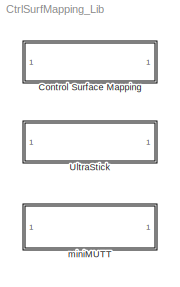
MODEL CtrlSurfMapping_Lib
KIND library
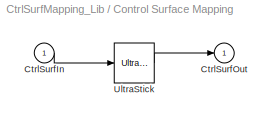
BLOCK [SubSystem] Control Surface Mapping
  BlockChoice = UltraStick
  FunctionWithSeparateData = off
  MaskHideContents = off
  MemberBlocks = UltraStick,miniMUTT
  MinAlgLoopOccurrences = off
  Opaque = off
  Ports = [1, 1]
  PropExecContextOutsideSubsystem = off
  RTWSystemCode = Auto
  RequestExecContextInheritance = off
  SID = 1
  TemplateBlock = self
BLOCK [Inport] Control Surface Mapping/CtrlSurfIn
  IconDisplay = Port number
  SID = 8
BLOCK [Outport] Control Surface Mapping/CtrlSurfOut
  IconDisplay = Port number
  SID = 9
BLOCK [Reference] Control Surface Mapping/UltraStick  REF=CtrlSurfMapping_Lib/UltraStick
  Ports = [1, 1]
  SID = 10
  SourceBlock = CtrlSurfMapping_Lib/UltraStick
  SourceType = SubSystem
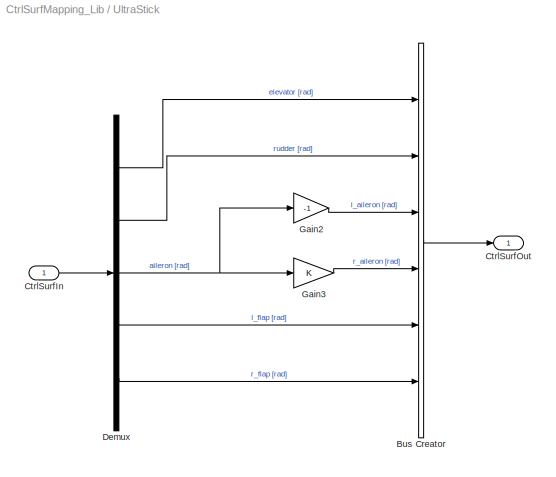
BLOCK [SubSystem] UltraStick
  FunctionWithSeparateData = off
  MaskHideContents = off
  MinAlgLoopOccurrences = off
  Opaque = off
  Ports = [1, 1]
  PropExecContextOutsideSubsystem = off
  RTWSystemCode = Auto
  RequestExecContextInheritance = off
  SID = 2
BLOCK [BusCreator] UltraStick/Bus Creator
  DisplayOption = bar
  Inputs = 6
  Ports = [6, 1]
  SID = 27
BLOCK [Inport] UltraStick/CtrlSurfIn
  IconDisplay = Port number
  SID = 3
BLOCK [Outport] UltraStick/CtrlSurfOut
  IconDisplay = Port number
  SID = 4
BLOCK [Demux] UltraStick/Demux
  DisplayOption = bar
  Outputs = 5
  Ports = [1, 5]
  SID = 13
BLOCK [Gain] UltraStick/Gain2
  Gain = -1
  OutDataTypeStr = Inherit: Inherit via internal rule
  ParamDataTypeStr = Inherit: Inherit via internal rule
  SID = 17
  SaturateOnIntegerOverflow = off
BLOCK [Gain] UltraStick/Gain3
  OutDataTypeStr = Inherit: Inherit via internal rule
  ParamDataTypeStr = Inherit: Inherit via internal rule
  SID = 18
  SaturateOnIntegerOverflow = off
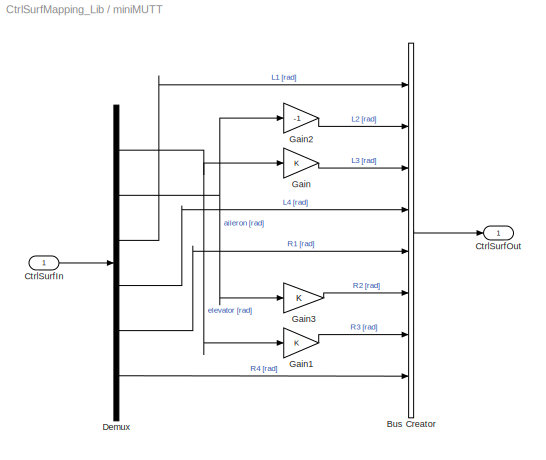
BLOCK [SubSystem] miniMUTT
  FunctionWithSeparateData = off
  MaskHideContents = off
  MinAlgLoopOccurrences = off
  Opaque = off
  Ports = [1, 1]
  PropExecContextOutsideSubsystem = off
  RTWSystemCode = Auto
  RequestExecContextInheritance = off
  SID = 5
BLOCK [BusCreator] miniMUTT/Bus Creator
  DisplayOption = bar
  Inputs = 8
  Ports = [8, 1]
  SID = 28
BLOCK [Inport] miniMUTT/CtrlSurfIn
  IconDisplay = Port number
  SID = 19
BLOCK [Outport] miniMUTT/CtrlSurfOut
  IconDisplay = Port number
  SID = 26
BLOCK [Demux] miniMUTT/Demux
  DisplayOption = bar
  Outputs = 6
  Ports = [1, 6]
  SID = 20
BLOCK [Gain] miniMUTT/Gain
  OutDataTypeStr = Inherit: Inherit via internal rule
  ParamDataTypeStr = Inherit: Inherit via internal rule
  SID = 21
  SaturateOnIntegerOverflow = off
BLOCK [Gain] miniMUTT/Gain1
  OutDataTypeStr = Inherit: Inherit via internal rule
  ParamDataTypeStr = Inherit: Inherit via internal rule
  SID = 22
  SaturateOnIntegerOverflow = off
BLOCK [Gain] miniMUTT/Gain2
  Gain = -1
  OutDataTypeStr = Inherit: Inherit via internal rule
  ParamDataTypeStr = Inherit: Inherit via internal rule
  SID = 23
  SaturateOnIntegerOverflow = off
BLOCK [Gain] miniMUTT/Gain3
  OutDataTypeStr = Inherit: Inherit via internal rule
  ParamDataTypeStr = Inherit: Inherit via internal rule
  SID = 24
  SaturateOnIntegerOverflow = off
LINE Control Surface Mapping/CtrlSurfIn:1 -> Control Surface Mapping/UltraStick:1
LINE Control Surface Mapping/UltraStick:1 -> Control Surface Mapping/CtrlSurfOut:1
LINE UltraStick/Bus Creator:1 -> UltraStick/CtrlSurfOut:1
LINE UltraStick/CtrlSurfIn:1 -> UltraStick/Demux:1
LINE UltraStick/Demux:1 -> UltraStick/Bus Creator:1
LINE UltraStick/Demux:2 -> UltraStick/Bus Creator:2
NET UltraStick/Demux:3 -> UltraStick/Gain2:1, UltraStick/Gain3:1
LINE UltraStick/Demux:4 -> UltraStick/Bus Creator:5
LINE UltraStick/Demux:5 -> UltraStick/Bus Creator:6
LINE UltraStick/Gain2:1 -> UltraStick/Bus Creator:3
LINE UltraStick/Gain3:1 -> UltraStick/Bus Creator:4
LINE miniMUTT/Bus Creator:1 -> miniMUTT/CtrlSurfOut:1
LINE miniMUTT/CtrlSurfIn:1 -> miniMUTT/Demux:1
NET miniMUTT/Demux:1 -> miniMUTT/Gain1:1, miniMUTT/Gain:1
NET miniMUTT/Demux:2 -> miniMUTT/Gain2:1, miniMUTT/Gain3:1
LINE miniMUTT/Demux:3 -> miniMUTT/Bus Creator:1
LINE miniMUTT/Demux:4 -> miniMUTT/Bus Creator:4
LINE miniMUTT/Demux:5 -> miniMUTT/Bus Creator:5
LINE miniMUTT/Demux:6 -> miniMUTT/Bus Creator:8
LINE miniMUTT/Gain1:1 -> miniMUTT/Bus Creator:7
LINE miniMUTT/Gain2:1 -> miniMUTT/Bus Creator:2
LINE miniMUTT/Gain3:1 -> miniMUTT/Bus Creator:6
LINE miniMUTT/Gain:1 -> miniMUTT/Bus Creator:3
note: NET lines group one-source signal fan-out (src -> all destinations, sorted); 1:1 wires keep LINE
